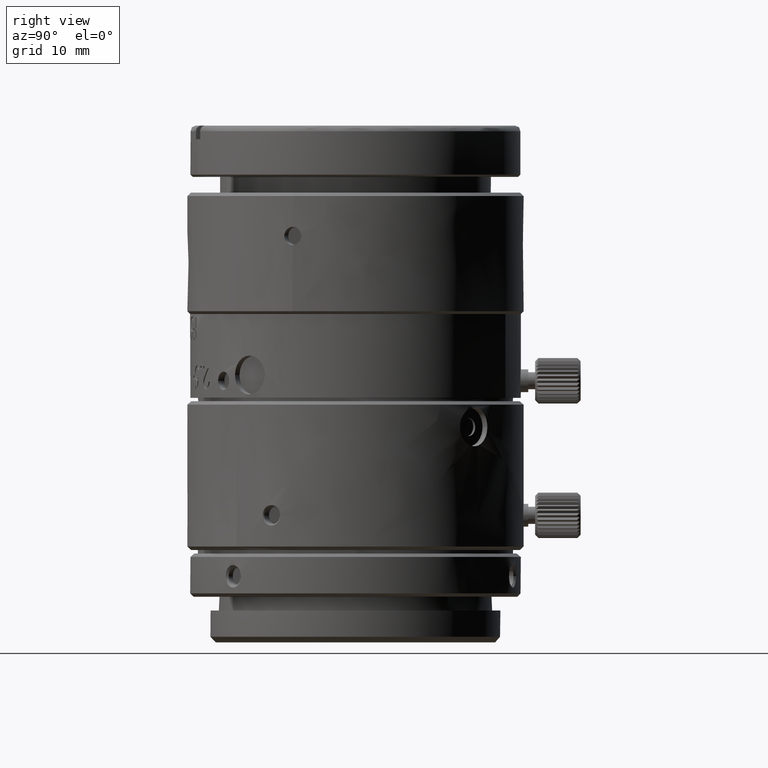
[diagram: clean part render]
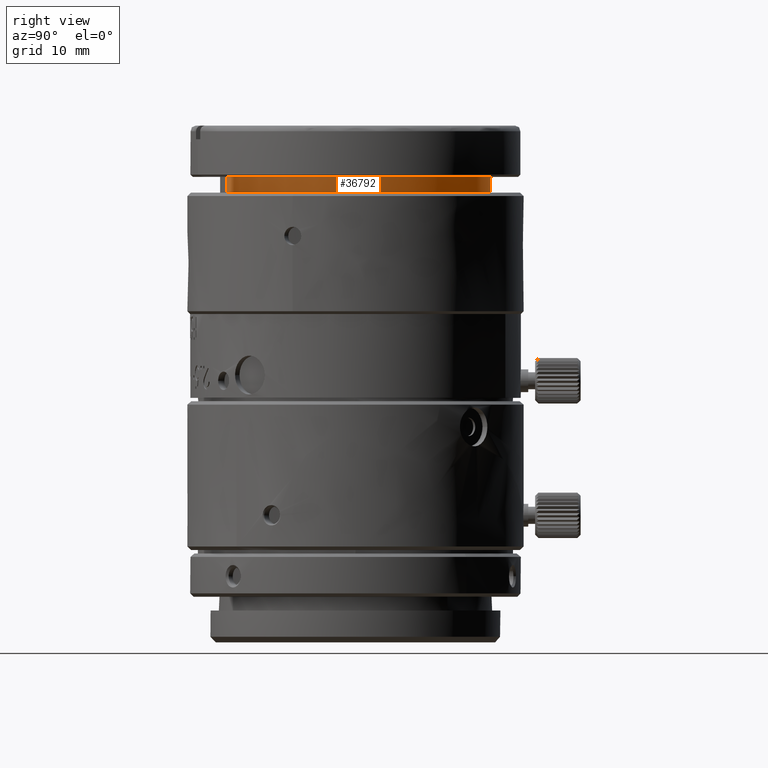
[diagram: same view with one face highlighted and labeled with its STEP entity id]
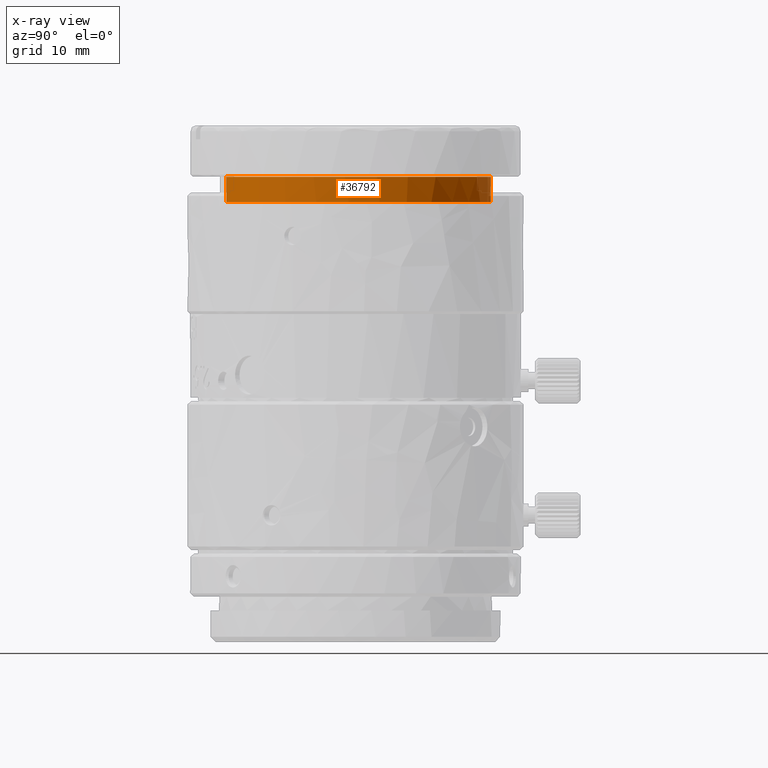
[diagram: x-ray of the same camera — body ghosted, the highlighted face saturated]
A machine part, right view. The second image highlights one B-rep face of the part: STEP entity #36792.
The next image is the same camera in x-ray: the body ghosted, the highlighted face saturated — about 0% of this face is hidden behind the body in this view.
In plain terms, the highlighted face is a freeform B-spline surface patch.
Its self-contained STEP definition (entity closure, byte-faithful):
#483 = CARTESIAN_POINT ( 'NONE',  ( 9.773019350488363344, -6.790558639819966658, 19.99405000000000143 ) ) ;
#500 = CARTESIAN_POINT ( 'NONE',  ( -3.610526529999996903, 11.31281234600000118, 17.79404999999999859 ) ) ;
#605 = CARTESIAN_POINT ( 'NONE',  ( 3.610526533039259522, -11.31281234541438074, 19.99404999999999788 ) ) ;
#1429 = CARTESIAN_POINT ( 'NONE',  ( -2.108918196996679928, 11.71221832291039533, 19.99405000000000143 ) ) ;
#3040 = CARTESIAN_POINT ( 'NONE',  ( 26.23615121439727815, -4.091759278199880612, 17.79404999999999859 ) ) ;
#3213 = CARTESIAN_POINT ( 'NONE',  ( 4.353336376473300184, -11.07574179608204545, 19.99405000000000143 ) ) ;
#3323 = CARTESIAN_POINT ( 'NONE',  ( 3.610526533039259522, -11.31281234541438074, 19.99404999999999788 ) ) ;
#3421 = CARTESIAN_POINT ( 'NONE',  ( 19.01509815271881365, 18.53386540303786489, 19.99405000000000143 ) ) ;
#3697 = CARTESIAN_POINT ( 'NONE',  ( 3.610526531812389806, -11.31281234542156078, 17.79404999999999859 ) ) ;
#4153 = CARTESIAN_POINT ( 'NONE',  ( 0.2165445141696686615, 11.89860084962107933, 19.99404999999999433 ) ) ;
#5483 =( BOUNDED_SURFACE ( )  B_SPLINE_SURFACE ( 1, 3, ( 
 ( #9256, #3040, #21265, #500 ),
 ( #18169, #21074, #3421, #17793 ) ),
 .UNSPECIFIED., .F., .F., .T. ) 
 B_SPLINE_SURFACE_WITH_KNOTS ( ( 2, 2 ),
 ( 4, 4 ),
 ( 0.0000000000000000000, 1.000000000000000000 ),
 ( 0.0000000000000000000, 1.000000000000000000 ),
 .UNSPECIFIED. ) 
 GEOMETRIC_REPRESENTATION_ITEM ( )  RATIONAL_B_SPLINE_SURFACE ( (
 ( 1.000000000000000000, 0.3333333334700690487, 0.3333333334700690487, 1.000000000000000000),
 ( 1.000000000000000000, 0.3333333334700690487, 0.3333333334700690487, 1.000000000000000000) ) ) 
 REPRESENTATION_ITEM ( '' )  SURFACE ( )  );
#5821 = EDGE_LOOP ( 'NONE', ( #34192, #20175, #21308, #23859 ) ) ;
#6127 = CARTESIAN_POINT ( 'NONE',  ( 8.801190410184904778, -8.010158644061561972, 19.99404999999999788 ) ) ;
#7065 = CARTESIAN_POINT ( 'NONE',  ( 1.770524065937279623, 11.76812808635034280, 19.99404999999999433 ) ) ;
#7249 = CARTESIAN_POINT ( 'NONE',  ( -0.5593439454571373926, 11.88741891899146452, 19.99404999999999788 ) ) ;
#7398 = EDGE_CURVE ( 'NONE', #38074, #17278, #8143, .T. ) ;
#8143 = B_SPLINE_CURVE_WITH_KNOTS ( 'NONE', 1,
 ( #15545, #3323 ),
 .UNSPECIFIED., .F., .F.,
 ( 2, 2 ),
 ( -1.000000000000000000, 0.0000000000000000000 ),
 .UNSPECIFIED. ) ;
#8719 = VERTEX_POINT ( 'NONE', #18910 ) ;
#8864 = FACE_OUTER_BOUND ( 'NONE', #5821, .T. ) ;
#9032 = CARTESIAN_POINT ( 'NONE',  ( -3.610526531812389806, 11.31281234542156078, 17.79404999999999859 ) ) ;
#9256 = CARTESIAN_POINT ( 'NONE',  ( 3.610526534640592811, -11.31281234451893702, 17.79404999999999859 ) ) ;
#9597 = B_SPLINE_CURVE_WITH_KNOTS ( 'NONE', 1,
 ( #26300, #9032 ),
 .UNSPECIFIED., .F., .F.,
 ( 2, 2 ),
 ( -1.000000000000000000, 0.0000000000000000000 ),
 .UNSPECIFIED. ) ;
#9986 = CARTESIAN_POINT ( 'NONE',  ( 6.430458266021452651, -10.01363072268398646, 19.99404999999999788 ) ) ;
#10374 = CARTESIAN_POINT ( 'NONE',  ( 9.573272757237404562, 7.069373582974343151, 19.99404999999999788 ) ) ;
#12343 = CARTESIAN_POINT ( 'NONE',  ( 11.71221832291039533, 2.108918196996663941, 19.99405000000000143 ) ) ;
#12532 = CARTESIAN_POINT ( 'NONE',  ( 8.260461249642100157, -8.566701445486669897, 19.99404999999999788 ) ) ;
#12909 = CARTESIAN_POINT ( 'NONE',  ( 3.610526533039259522, -11.31281234541438074, 19.99404999999999788 ) ) ;
#13663 = CARTESIAN_POINT ( 'NONE',  ( 6.790558639819954223, 9.773019350488374002, 19.99404999999999788 ) ) ;
#15245 = CARTESIAN_POINT ( 'NONE',  ( 10.19478242795847223, -6.139218602319089335, 19.99404999999999788 ) ) ;
#15545 = CARTESIAN_POINT ( 'NONE',  ( 3.610526531812389806, -11.31281234542156078, 17.79404999999999859 ) ) ;
#16192 = CARTESIAN_POINT ( 'NONE',  ( 10.01363072268399357, 6.430458266021434888, 19.99404999999999433 ) ) ;
#17278 = VERTEX_POINT ( 'NONE', #605 ) ;
#17793 = CARTESIAN_POINT ( 'NONE',  ( -3.610526529999996903, 11.31281234600000118, 19.99404999999999788 ) ) ;
#17969 = CARTESIAN_POINT ( 'NONE',  ( 11.62772683455017741, -2.533685537452112335, 19.99404999999999433 ) ) ;
#17983 = CARTESIAN_POINT ( 'NONE',  ( 26.23615121033403241, -4.091759279496682389, 17.79405000000000214 ) ) ;
#18169 = CARTESIAN_POINT ( 'NONE',  ( 3.610526534640592811, -11.31281234451893702, 19.99404999999999788 ) ) ;
#18339 = CARTESIAN_POINT ( 'NONE',  ( 11.76812808635033747, -1.770524065937292724, 19.99404999999999433 ) ) ;
#18910 = CARTESIAN_POINT ( 'NONE',  ( -3.610526531812389806, 11.31281234542156078, 17.79404999999999859 ) ) ;
#20175 = ORIENTED_EDGE ( 'NONE', *, *, #26647, .F. ) ;
#20206 = EDGE_CURVE ( 'NONE', #17278, #36281, #33584, .T. ) ;
#21074 = CARTESIAN_POINT ( 'NONE',  ( 26.23615121439727815, -4.091759278199880612, 19.99405000000000143 ) ) ;
#21250 = CARTESIAN_POINT ( 'NONE',  ( 11.54988289832850690, 2.867716683199914129, 19.99404999999999788 ) ) ;
#21265 = CARTESIAN_POINT ( 'NONE',  ( 19.01509815271881365, 18.53386540303786489, 17.79404999999999859 ) ) ;
#21308 = ORIENTED_EDGE ( 'NONE', *, *, #20206, .F. ) ;
#21455 = CARTESIAN_POINT ( 'NONE',  ( -3.610526531812389806, 11.31281234542156078, 17.79404999999999859 ) ) ;
#21861 = EDGE_CURVE ( 'NONE', #38074, #8719, #30840, .T. ) ;
#22189 = CARTESIAN_POINT ( 'NONE',  ( 10.76849138301151854, 5.065884700077614156, 19.99404999999999788 ) ) ;
#23859 = ORIENTED_EDGE ( 'NONE', *, *, #7398, .F. ) ;
#24157 = CARTESIAN_POINT ( 'NONE',  ( 5.065884700077597280, -10.76849138301152564, 19.99404999999999788 ) ) ;
#24335 = CARTESIAN_POINT ( 'NONE',  ( 11.19659470091211873, -4.032351836543817569, 19.99404999999999788 ) ) ;
#25688 = CARTESIAN_POINT ( 'NONE',  ( 8.010158644061581512, 8.801190410184897672, 19.99405000000000143 ) ) ;
#26300 = CARTESIAN_POINT ( 'NONE',  ( -3.610526529268324847, 11.31281234661790158, 19.99404999999999788 ) ) ;
#26647 = EDGE_CURVE ( 'NONE', #36281, #8719, #9597, .T. ) ;
#28010 = CARTESIAN_POINT ( 'NONE',  ( 6.139218602319078677, 10.19478242795847400, 19.99404999999999788 ) ) ;
#28592 = CARTESIAN_POINT ( 'NONE',  ( 11.07574179608204723, 4.353336376473283309, 19.99404999999999433 ) ) ;
#29792 = CARTESIAN_POINT ( 'NONE',  ( 11.88741891899146275, 0.5593439454571488278, 19.99404999999999433 ) ) ;
#29807 = CARTESIAN_POINT ( 'NONE',  ( 19.01509815198398812, 18.53386539832622049, 17.79405000000000214 ) ) ;
#30718 = CARTESIAN_POINT ( 'NONE',  ( 4.032351836543804247, 11.19659470091212228, 19.99404999999999788 ) ) ;
#30840 =( BOUNDED_CURVE ( )  B_SPLINE_CURVE ( 3, ( #36186, #17983, #29807, #21455 ),
 .UNSPECIFIED., .F., .T. ) 
 B_SPLINE_CURVE_WITH_KNOTS ( ( 4, 4 ),
 ( -8.162916750478121486, -5.021324096888330146 ),
 .UNSPECIFIED. ) 
 CURVE ( )  GEOMETRIC_REPRESENTATION_ITEM ( )  RATIONAL_B_SPLINE_CURVE ( ( 1.000000000000000000, 0.3333333335299311084, 0.3333333335299311084, 1.000000000000000000 ) ) 
 REPRESENTATION_ITEM ( '' )  );
#31291 = CARTESIAN_POINT ( 'NONE',  ( -2.867716683199901695, 11.54988289832851223, 19.99405000000000499 ) ) ;
#32699 = CARTESIAN_POINT ( 'NONE',  ( 7.069373582974327164, -9.573272757237415220, 19.99404999999999788 ) ) ;
#33584 = B_SPLINE_CURVE_WITH_KNOTS ( 'NONE', 3,
 ( #12909, #3213, #24157, #9986, #32699, #12532, #6127, #483, #15245, #35984, #24335, #17969, #18339, #36171, #29792, #12343, #21250, #28592, #22189, #16192, #10374, #34017, #25688, #13663, #28010, #34216, #30718, #37513, #7065, #4153, #7249, #1429, #31291, #37131 ),
 .UNSPECIFIED., .F., .F.,
 ( 4, 2, 2, 2, 2, 2, 2, 2, 2, 2, 2, 2, 2, 2, 2, 2, 4 ),
 ( 5.021324096888330146, 5.217673637737692438, 5.414023178587053842, 5.610372719436416133, 5.806722260285778425, 6.003071801135140717, 6.199421341984502121, 6.395770882833864412, 6.592120423683226704, 6.788469964532588108, 6.984819505381950400, 7.181169046231312691, 7.377518587080674095, 7.573868127930037275, 7.770217668779398679, 7.966567209628760082, 8.162916750478121486 ),
 .UNSPECIFIED. ) ;
#34017 = CARTESIAN_POINT ( 'NONE',  ( 8.566701445486680555, 8.260461249642084169, 19.99404999999999788 ) ) ;
#34192 = ORIENTED_EDGE ( 'NONE', *, *, #21861, .T. ) ;
#34216 = CARTESIAN_POINT ( 'NONE',  ( 4.753458456557226874, 10.91000579753539768, 19.99404999999999788 ) ) ;
#34473 = CARTESIAN_POINT ( 'NONE',  ( -3.610526529268324847, 11.31281234661790158, 19.99404999999999788 ) ) ;
#35984 = CARTESIAN_POINT ( 'NONE',  ( 10.91000579753540833, -4.753458456557217104, 19.99405000000000143 ) ) ;
#36171 = CARTESIAN_POINT ( 'NONE',  ( 11.89860084962107933, -0.2165445141696543396, 19.99405000000000143 ) ) ;
#36186 = CARTESIAN_POINT ( 'NONE',  ( 3.610526531812389806, -11.31281234542156078, 17.79404999999999859 ) ) ;
#36281 = VERTEX_POINT ( 'NONE', #34473 ) ;
#36792 = ADVANCED_FACE ( 'NONE', ( #8864 ), #5483, .F. ) ;
#37131 = CARTESIAN_POINT ( 'NONE',  ( -3.610526529268324847, 11.31281234661790158, 19.99404999999999788 ) ) ;
#37513 = CARTESIAN_POINT ( 'NONE',  ( 2.533685537452132763, 11.62772683455017031, 19.99404999999999788 ) ) ;
#38074 = VERTEX_POINT ( 'NONE', #3697 ) ;